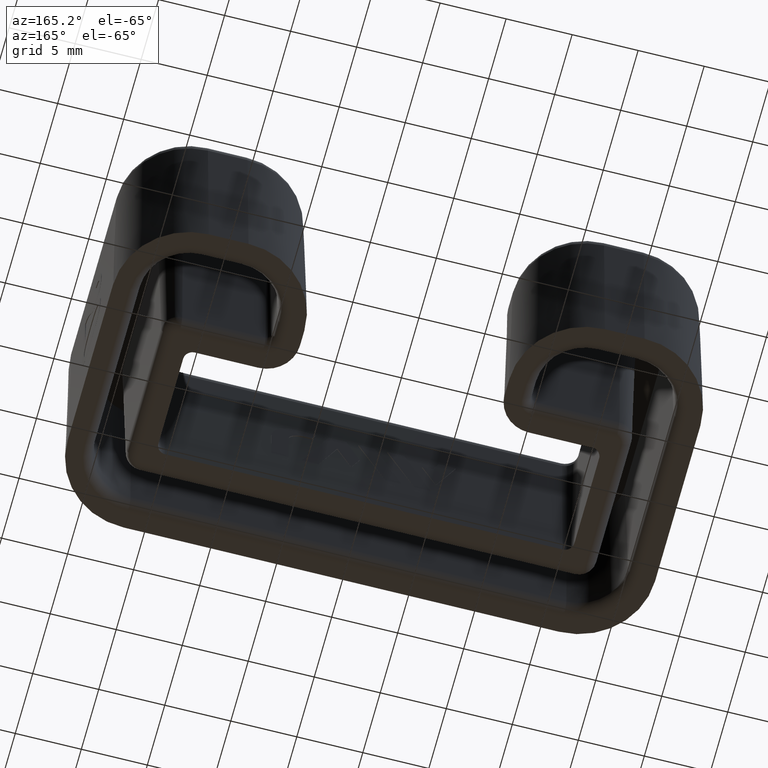
[diagram: clean part render]
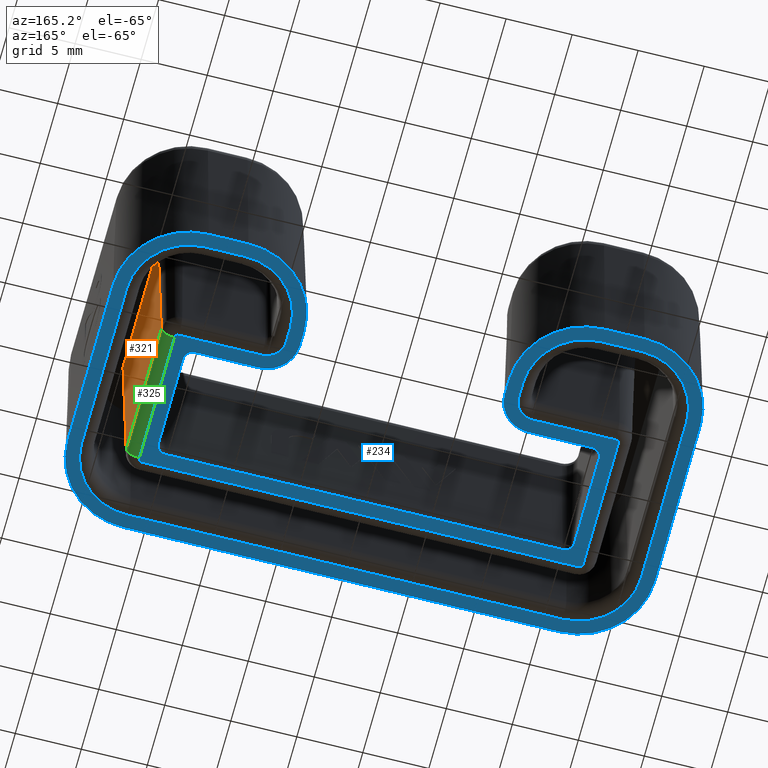
[diagram: same view with three faces highlighted in distinct colors, each labeled with its STEP entity id]
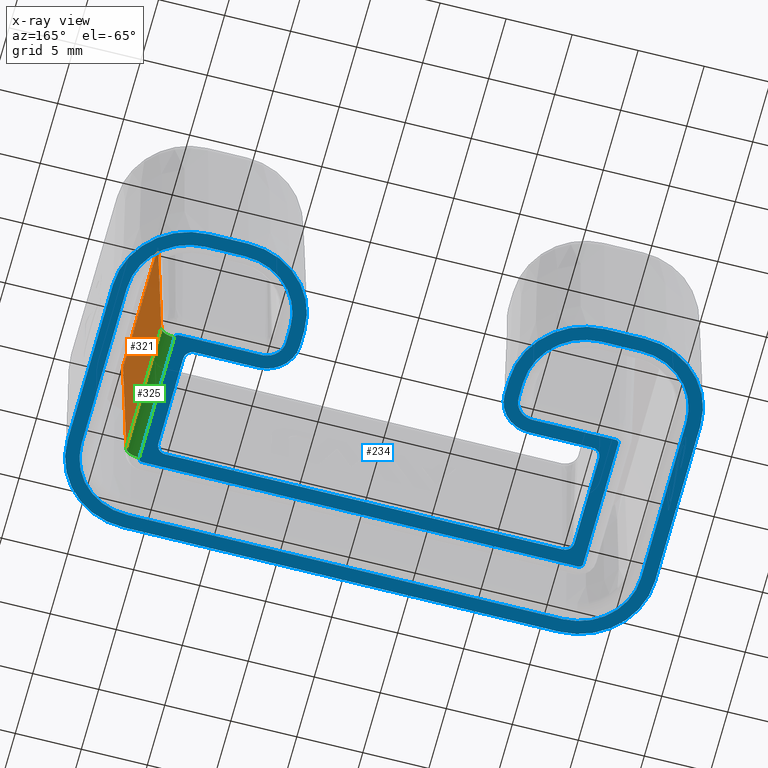
[diagram: x-ray of the same camera — body ghosted, the three highlighted faces saturated]
A machine part, auxiliary view with three faces highlighted in distinct colors.
The next image is the same camera in x-ray (body ghosted, the three faces saturated) — at least one of them is partly hidden behind the body in this view.
Their STEP definitions:

[orange] entity #321 — the highlighted planar face has unit normal (0.9998, 0, -0.0175).
#321=ADVANCED_FACE('',(#684),#685,.T.);
#684=FACE_OUTER_BOUND('',#1089,.T.);
#685=PLANE('',#1090);
#1089=EDGE_LOOP('',(#2621,#2622,#2623,#2624));
#1090=AXIS2_PLACEMENT_3D('',#2625,#2626,#2627);
#2621=ORIENTED_EDGE('',*,*,#3079,.F.);
#2622=ORIENTED_EDGE('',*,*,#3130,.T.);
#2623=ORIENTED_EDGE('',*,*,#3127,.T.);
#2624=ORIENTED_EDGE('',*,*,#3131,.T.);
#2625=CARTESIAN_POINT('',(18.05,1.95,15.0));
#2626=DIRECTION('',(0.999847695156391,0.0,-0.0174524064372835));
#2627=DIRECTION('',(-0.0174524064372835,0.0,-0.999847695156391));
#3079=EDGE_CURVE('',#3756,#3758,#3759,.T.);
#3127=EDGE_CURVE('',#3831,#3832,#3833,.T.);
#3130=EDGE_CURVE('',#3756,#3831,#3836,.F.);
#3131=EDGE_CURVE('',#3832,#3758,#3837,.F.);
#3756=VERTEX_POINT('',#5321);
#3758=VERTEX_POINT('',#5323);
#3759=LINE('',#5324,#5325);
#3831=VERTEX_POINT('',#5432);
#3832=VERTEX_POINT('',#5433);
#3833=LINE('',#5434,#5435);
#3836=LINE('',#5438,#5439);
#3837=LINE('',#5440,#5441);
#5321=CARTESIAN_POINT('',(17.8053244581175,3.5,0.982547593562718));
#5323=CARTESIAN_POINT('',(18.05,3.5,15.0));
#5324=CARTESIAN_POINT('',(18.05,3.5,15.0));
#5325=VECTOR('',#5955,1000.0);
#5432=CARTESIAN_POINT('',(17.8053244581175,13.55,0.982547593562718));
#5433=CARTESIAN_POINT('',(18.05,13.55,15.0));
#5434=CARTESIAN_POINT('',(18.05,13.55,15.0));
#5435=VECTOR('',#6027,1000.0);
#5438=CARTESIAN_POINT('',(17.8053244581175,13.55,0.982547593562716));
#5439=VECTOR('',#6034,1000.0);
#5440=CARTESIAN_POINT('',(18.05,1.95,15.0));
#5441=VECTOR('',#6035,1000.0);
#5955=DIRECTION('',(0.0174524064372835,0.0,0.999847695156391));
#6027=DIRECTION('',(0.0174524064372835,0.0,0.999847695156391));
#6034=DIRECTION('',(0.0,-1.0,0.0));
#6035=DIRECTION('',(0.0,1.0,0.0));

[blue] entity #234 — the highlighted planar face has unit normal (0, 0, -1).
#234=ADVANCED_FACE('',(#509,#510),#511,.T.);
#509=FACE_BOUND('',#914,.T.);
#510=FACE_OUTER_BOUND('',#915,.T.);
#511=PLANE('',#916);
#914=EDGE_LOOP('',(#1948,#1949,#1950,#1951,#1952,#1953,#1954,#1955,#1956,#1957,#1958,#1959,#1960,#1961,#1962,#1963,#1964,#1965,#1966,#1967,#1968,#1969,#1970,#1971));
#915=EDGE_LOOP('',(#1972,#1973,#1974,#1975,#1976,#1977,#1978,#1979,#1980,#1981,#1982,#1983,#1984,#1985,#1986,#1987,#1988,#1989,#1990,#1991,#1992,#1993,#1994,#1995));
#916=AXIS2_PLACEMENT_3D('',#1996,#1997,#1998);
#1948=ORIENTED_EDGE('',*,*,#2909,.T.);
#1949=ORIENTED_EDGE('',*,*,#2910,.T.);
#1950=ORIENTED_EDGE('',*,*,#2911,.T.);
#1951=ORIENTED_EDGE('',*,*,#2912,.T.);
#1952=ORIENTED_EDGE('',*,*,#2913,.T.);
#1953=ORIENTED_EDGE('',*,*,#2914,.T.);
#1954=ORIENTED_EDGE('',*,*,#2915,.T.);
#1955=ORIENTED_EDGE('',*,*,#2916,.T.);
#1956=ORIENTED_EDGE('',*,*,#2917,.T.);
#1957=ORIENTED_EDGE('',*,*,#2899,.T.);
#1958=ORIENTED_EDGE('',*,*,#2918,.T.);
#1959=ORIENTED_EDGE('',*,*,#2919,.T.);
#1960=ORIENTED_EDGE('',*,*,#2920,.T.);
#1961=ORIENTED_EDGE('',*,*,#2921,.T.);
#1962=ORIENTED_EDGE('',*,*,#2922,.T.);
#1963=ORIENTED_EDGE('',*,*,#2923,.T.);
#1964=ORIENTED_EDGE('',*,*,#2924,.T.);
#1965=ORIENTED_EDGE('',*,*,#2908,.T.);
#1966=ORIENTED_EDGE('',*,*,#2905,.T.);
#1967=ORIENTED_EDGE('',*,*,#2925,.T.);
#1968=ORIENTED_EDGE('',*,*,#2926,.T.);
#1969=ORIENTED_EDGE('',*,*,#2927,.T.);
#1970=ORIENTED_EDGE('',*,*,#2928,.T.);
#1971=ORIENTED_EDGE('',*,*,#2929,.T.);
#1972=ORIENTED_EDGE('',*,*,#2930,.F.);
#1973=ORIENTED_EDGE('',*,*,#2931,.F.);
#1974=ORIENTED_EDGE('',*,*,#2932,.F.);
#1975=ORIENTED_EDGE('',*,*,#2933,.F.);
#1976=ORIENTED_EDGE('',*,*,#2934,.F.);
#1977=ORIENTED_EDGE('',*,*,#2935,.F.);
#1978=ORIENTED_EDGE('',*,*,#2936,.F.);
#1979=ORIENTED_EDGE('',*,*,#2937,.F.);
#1980=ORIENTED_EDGE('',*,*,#2938,.F.);
#1981=ORIENTED_EDGE('',*,*,#2939,.F.);
#1982=ORIENTED_EDGE('',*,*,#2940,.F.);
#1983=ORIENTED_EDGE('',*,*,#2941,.F.);
#1984=ORIENTED_EDGE('',*,*,#2942,.F.);
#1985=ORIENTED_EDGE('',*,*,#2943,.F.);
#1986=ORIENTED_EDGE('',*,*,#2944,.F.);
#1987=ORIENTED_EDGE('',*,*,#2945,.F.);
#1988=ORIENTED_EDGE('',*,*,#2946,.F.);
#1989=ORIENTED_EDGE('',*,*,#2947,.F.);
#1990=ORIENTED_EDGE('',*,*,#2948,.F.);
#1991=ORIENTED_EDGE('',*,*,#2949,.F.);
#1992=ORIENTED_EDGE('',*,*,#2950,.F.);
#1993=ORIENTED_EDGE('',*,*,#2951,.F.);
#1994=ORIENTED_EDGE('',*,*,#2952,.F.);
#1995=ORIENTED_EDGE('',*,*,#2953,.F.);
#1996=CARTESIAN_POINT('',(15.05,4.95,0.0));
#1997=DIRECTION('',(0.0,0.0,-1.0));
#1998=DIRECTION('',(0.0,-1.0,0.0));
#2899=EDGE_CURVE('',#3463,#3461,#3464,.F.);
#2905=EDGE_CURVE('',#3468,#3473,#3475,.F.);
#2908=EDGE_CURVE('',#3476,#3468,#3480,.T.);
#2909=EDGE_CURVE('',#3481,#3482,#3483,.F.);
#2910=EDGE_CURVE('',#3482,#3484,#3485,.F.);
#2911=EDGE_CURVE('',#3484,#3486,#3487,.F.);
#2912=EDGE_CURVE('',#3486,#3488,#3489,.F.);
#2913=EDGE_CURVE('',#3488,#3490,#3491,.F.);
#2914=EDGE_CURVE('',#3490,#3492,#3493,.F.);
#2915=EDGE_CURVE('',#3492,#3494,#3495,.F.);
#2916=EDGE_CURVE('',#3494,#3496,#3497,.F.);
#2917=EDGE_CURVE('',#3496,#3463,#3498,.F.);
#2918=EDGE_CURVE('',#3461,#3499,#3500,.F.);
#2919=EDGE_CURVE('',#3499,#3501,#3502,.T.);
#2920=EDGE_CURVE('',#3501,#3503,#3504,.F.);
#2921=EDGE_CURVE('',#3503,#3505,#3506,.T.);
#2922=EDGE_CURVE('',#3505,#3507,#3508,.F.);
#2923=EDGE_CURVE('',#3507,#3509,#3510,.T.);
#2924=EDGE_CURVE('',#3509,#3476,#3511,.F.);
#2925=EDGE_CURVE('',#3473,#3512,#3513,.F.);
#2926=EDGE_CURVE('',#3512,#3514,#3515,.F.);
#2927=EDGE_CURVE('',#3514,#3516,#3517,.F.);
#2928=EDGE_CURVE('',#3516,#3518,#3519,.F.);
#2929=EDGE_CURVE('',#3518,#3481,#3520,.F.);
#2930=EDGE_CURVE('',#3521,#3522,#3523,.T.);
#2931=EDGE_CURVE('',#3524,#3521,#3525,.F.);
#2932=EDGE_CURVE('',#3526,#3524,#3527,.T.);
#2933=EDGE_CURVE('',#3528,#3526,#3529,.F.);
#2934=EDGE_CURVE('',#3530,#3528,#3531,.F.);
#2935=EDGE_CURVE('',#3532,#3530,#3533,.F.);
#2936=EDGE_CURVE('',#3534,#3532,#3535,.F.);
#2937=EDGE_CURVE('',#3536,#3534,#3537,.F.);
#2938=EDGE_CURVE('',#3538,#3536,#3539,.F.);
#2939=EDGE_CURVE('',#3540,#3538,#3541,.F.);
#2940=EDGE_CURVE('',#3542,#3540,#3543,.F.);
#2941=EDGE_CURVE('',#3544,#3542,#3545,.F.);
#2942=EDGE_CURVE('',#3546,#3544,#3547,.F.);
#2943=EDGE_CURVE('',#3548,#3546,#3549,.F.);
#2944=EDGE_CURVE('',#3550,#3548,#3551,.F.);
#2945=EDGE_CURVE('',#3552,#3550,#3553,.F.);
#2946=EDGE_CURVE('',#3554,#3552,#3555,.F.);
#2947=EDGE_CURVE('',#3556,#3554,#3557,.F.);
#2948=EDGE_CURVE('',#3558,#3556,#3559,.F.);
#2949=EDGE_CURVE('',#3560,#3558,#3561,.F.);
#2950=EDGE_CURVE('',#3562,#3560,#3563,.T.);
#2951=EDGE_CURVE('',#3564,#3562,#3565,.F.);
#2952=EDGE_CURVE('',#3566,#3564,#3567,.T.);
#2953=EDGE_CURVE('',#3522,#3566,#3568,.F.);
#3461=VERTEX_POINT('',#4945);
#3463=VERTEX_POINT('',#4947);
#3464=CIRCLE('',#4948,1.44452323703895);
#3468=VERTEX_POINT('',#4952);
#3473=VERTEX_POINT('',#4958);
#3475=LINE('',#4960,#4961);
#3476=VERTEX_POINT('',#4962);
#3480=CIRCLE('',#4966,0.255476762961047);
#3481=VERTEX_POINT('',#4967);
#3482=VERTEX_POINT('',#4968);
#3483=LINE('',#4969,#4970);
#3484=VERTEX_POINT('',#4971);
#3485=CIRCLE('',#4972,4.69452323703894);
#3486=VERTEX_POINT('',#4973);
#3487=LINE('',#4974,#4975);
#3488=VERTEX_POINT('',#4976);
#3489=CIRCLE('',#4977,4.69452323703896);
#3490=VERTEX_POINT('',#4978);
#3491=LINE('',#4979,#4980);
#3492=VERTEX_POINT('',#4981);
#3493=CIRCLE('',#4982,4.69452323703918);
#3494=VERTEX_POINT('',#4983);
#3495=LINE('',#4984,#4985);
#3496=VERTEX_POINT('',#4986);
#3497=CIRCLE('',#4987,4.6945232370389);
#3498=LINE('',#4988,#4989);
#3499=VERTEX_POINT('',#4990);
#3500=LINE('',#4991,#4992);
#3501=VERTEX_POINT('',#4993);
#3502=CIRCLE('',#4994,0.255476762961045);
#3503=VERTEX_POINT('',#4995);
#3504=LINE('',#4996,#4997);
#3505=VERTEX_POINT('',#4998);
#3506=CIRCLE('',#4999,0.305476762961264);
#3507=VERTEX_POINT('',#5000);
#3508=LINE('',#5001,#5002);
#3509=VERTEX_POINT('',#5003);
#3510=CIRCLE('',#5004,0.305476762960986);
#3511=LINE('',#5005,#5006);
#3512=VERTEX_POINT('',#5007);
#3513=CIRCLE('',#5008,1.44452323703895);
#3514=VERTEX_POINT('',#5009);
#3515=LINE('',#5010,#5011);
#3516=VERTEX_POINT('',#5012);
#3517=CIRCLE('',#5013,4.69452323703896);
#3518=VERTEX_POINT('',#5014);
#3519=LINE('',#5015,#5016);
#3520=CIRCLE('',#5017,4.69452323703896);
#3521=VERTEX_POINT('',#5018);
#3522=VERTEX_POINT('',#5019);
#3523=CIRCLE('',#5020,0.7032638962203);
#3524=VERTEX_POINT('',#5021);
#3525=LINE('',#5022,#5023);
#3526=VERTEX_POINT('',#5024);
#3527=CIRCLE('',#5025,0.7032638962203);
#3528=VERTEX_POINT('',#5026);
#3529=LINE('',#5027,#5028);
#3530=VERTEX_POINT('',#5029);
#3531=CIRCLE('',#5030,2.49673610377971);
#3532=VERTEX_POINT('',#5031);
#3533=LINE('',#5032,#5033);
#3534=VERTEX_POINT('',#5034);
#3535=CIRCLE('',#5035,5.74673610377965);
#3536=VERTEX_POINT('',#5036);
#3537=LINE('',#5037,#5038);
#3538=VERTEX_POINT('',#5039);
#3539=CIRCLE('',#5040,5.74673610377957);
#3540=VERTEX_POINT('',#5041);
#3541=LINE('',#5042,#5043);
#3542=VERTEX_POINT('',#5044);
#3543=CIRCLE('',#5045,5.74673610377979);
#3544=VERTEX_POINT('',#5046);
#3545=LINE('',#5047,#5048);
#3546=VERTEX_POINT('',#5049);
#3547=CIRCLE('',#5050,5.74673610377969);
#3548=VERTEX_POINT('',#5051);
#3549=LINE('',#5052,#5053);
#3550=VERTEX_POINT('',#5054);
#3551=CIRCLE('',#5055,5.7467361037797);
#3552=VERTEX_POINT('',#5056);
#3553=LINE('',#5057,#5058);
#3554=VERTEX_POINT('',#5059);
#3555=CIRCLE('',#5060,5.7467361037797);
#3556=VERTEX_POINT('',#5061);
#3557=LINE('',#5062,#5063);
#3558=VERTEX_POINT('',#5064);
#3559=CIRCLE('',#5065,2.49673610377971);
#3560=VERTEX_POINT('',#5066);
#3561=LINE('',#5067,#5068);
#3562=VERTEX_POINT('',#5069);
#3563=CIRCLE('',#5070,0.703263896220302);
#3564=VERTEX_POINT('',#5071);
#3565=LINE('',#5072,#5073);
#3566=VERTEX_POINT('',#5074);
#3567=CIRCLE('',#5075,0.703263896220301);
#3568=LINE('',#5076,#5077);
#4945=CARTESIAN_POINT('',(10.25,13.805476762961,0.0));
#4947=CARTESIAN_POINT('',(8.80547676296111,15.25,0.0));
#4948=AXIS2_PLACEMENT_3D('',#5577,#5578,#5579);
#4952=CARTESIAN_POINT('',(-16.55,13.805476762961,0.0));
#4958=CARTESIAN_POINT('',(-10.25,13.805476762961,0.0));
#4960=CARTESIAN_POINT('',(-10.25,13.805476762961,0.0));
#4961=VECTOR('',#5593,1000.0);
#4962=CARTESIAN_POINT('',(-16.805476762961,13.55,0.0));
#4966=AXIS2_PLACEMENT_3D('',#5600,#5601,#5602);
#4967=CARTESIAN_POINT('',(-21.1945232370389,16.5,0.0));
#4968=CARTESIAN_POINT('',(-21.1945232370389,3.5,0.0));
#4969=CARTESIAN_POINT('',(-21.1945232370389,3.5,0.0));
#4970=VECTOR('',#5603,1000.0);
#4971=CARTESIAN_POINT('',(-16.5,-1.19452323703895,0.0));
#4972=AXIS2_PLACEMENT_3D('',#5604,#5605,#5606);
#4973=CARTESIAN_POINT('',(16.5,-1.19452323703895,0.0));
#4974=CARTESIAN_POINT('',(16.5,-1.19452323703895,0.0));
#4975=VECTOR('',#5607,1000.0);
#4976=CARTESIAN_POINT('',(21.1945232370389,3.5,0.0));
#4977=AXIS2_PLACEMENT_3D('',#5608,#5609,#5610);
#4978=CARTESIAN_POINT('',(21.194523237039,16.5,0.0));
#4979=CARTESIAN_POINT('',(21.194523237039,16.5,0.0));
#4980=VECTOR('',#5611,1000.0);
#4981=CARTESIAN_POINT('',(16.5,21.1945232370392,0.0));
#4982=AXIS2_PLACEMENT_3D('',#5612,#5613,#5614);
#4983=CARTESIAN_POINT('',(13.5,21.194523237039,0.0));
#4984=CARTESIAN_POINT('',(13.5,21.194523237039,0.0));
#4985=VECTOR('',#5615,1000.0);
#4986=CARTESIAN_POINT('',(8.80547676296106,16.5,0.0));
#4987=AXIS2_PLACEMENT_3D('',#5616,#5617,#5618);
#4988=CARTESIAN_POINT('',(8.80547676296111,15.25,0.0));
#4989=VECTOR('',#5619,1000.0);
#4990=CARTESIAN_POINT('',(16.55,13.805476762961,0.0));
#4991=CARTESIAN_POINT('',(16.55,13.805476762961,0.0));
#4992=VECTOR('',#5620,1000.0);
#4993=CARTESIAN_POINT('',(16.8054767629611,13.55,0.0));
#4994=AXIS2_PLACEMENT_3D('',#5621,#5622,#5623);
#4995=CARTESIAN_POINT('',(16.8054767629611,3.5,0.0));
#4996=CARTESIAN_POINT('',(16.8054767629611,3.5,0.0));
#4997=VECTOR('',#5624,1000.0);
#4998=CARTESIAN_POINT('',(16.5,3.19452323703871,0.0));
#4999=AXIS2_PLACEMENT_3D('',#5625,#5626,#5627);
#5000=CARTESIAN_POINT('',(-16.5,3.19452323703895,0.0));
#5001=CARTESIAN_POINT('',(-16.5,3.19452323703895,0.0));
#5002=VECTOR('',#5628,1000.0);
#5003=CARTESIAN_POINT('',(-16.8054767629609,3.5,0.0));
#5004=AXIS2_PLACEMENT_3D('',#5629,#5630,#5631);
#5005=CARTESIAN_POINT('',(-16.805476762961,13.55,0.0));
#5006=VECTOR('',#5632,1000.0);
#5007=CARTESIAN_POINT('',(-8.80547676296097,15.25,0.0));
#5008=AXIS2_PLACEMENT_3D('',#5633,#5634,#5635);
#5009=CARTESIAN_POINT('',(-8.80547676296097,16.5,0.0));
#5010=CARTESIAN_POINT('',(-8.80547676296097,16.5,0.0));
#5011=VECTOR('',#5636,1000.0);
#5012=CARTESIAN_POINT('',(-13.5,21.194523237039,0.0));
#5013=AXIS2_PLACEMENT_3D('',#5637,#5638,#5639);
#5014=CARTESIAN_POINT('',(-16.5,21.194523237039,0.0));
#5015=CARTESIAN_POINT('',(-16.5,21.194523237039,0.0));
#5016=VECTOR('',#5640,1000.0);
#5017=AXIS2_PLACEMENT_3D('',#5641,#5642,#5643);
#5018=CARTESIAN_POINT('',(15.7532638962204,4.95,0.0));
#5019=CARTESIAN_POINT('',(15.05,4.2467361037797,0.0));
#5020=AXIS2_PLACEMENT_3D('',#5644,#5645,#5646);
#5021=CARTESIAN_POINT('',(15.7532638962204,12.05,0.0));
#5022=CARTESIAN_POINT('',(15.7532638962204,3.95,0.0));
#5023=VECTOR('',#5647,1000.0);
#5024=CARTESIAN_POINT('',(15.05,12.7532638962203,0.0));
#5025=AXIS2_PLACEMENT_3D('',#5648,#5649,#5650);
#5026=CARTESIAN_POINT('',(10.25,12.7532638962203,0.0));
#5027=CARTESIAN_POINT('',(15.05,12.7532638962203,0.0));
#5028=VECTOR('',#5651,1000.0);
#5029=CARTESIAN_POINT('',(7.75326389622037,15.25,0.0));
#5030=AXIS2_PLACEMENT_3D('',#5652,#5653,#5654);
#5031=CARTESIAN_POINT('',(7.75326389622031,16.5,0.0));
#5032=CARTESIAN_POINT('',(7.75326389622037,3.95,0.0));
#5033=VECTOR('',#5655,1000.0);
#5034=CARTESIAN_POINT('',(13.5,22.2467361037797,0.0));
#5035=AXIS2_PLACEMENT_3D('',#5656,#5657,#5658);
#5036=CARTESIAN_POINT('',(16.5,22.2467361037796,0.0));
#5037=CARTESIAN_POINT('',(15.05,22.2467361037797,0.0));
#5038=VECTOR('',#5659,1000.0);
#5039=CARTESIAN_POINT('',(22.2467361037798,16.5,0.0));
#5040=AXIS2_PLACEMENT_3D('',#5660,#5661,#5662);
#5041=CARTESIAN_POINT('',(22.2467361037798,3.5,0.0));
#5042=CARTESIAN_POINT('',(22.2467361037798,3.95,0.0));
#5043=VECTOR('',#5663,1000.0);
#5044=CARTESIAN_POINT('',(16.5,-2.2467361037797,0.0));
#5045=AXIS2_PLACEMENT_3D('',#5664,#5665,#5666);
#5046=CARTESIAN_POINT('',(-16.5,-2.24673610377971,0.0));
#5047=CARTESIAN_POINT('',(15.05,-2.2467361037797,0.0));
#5048=VECTOR('',#5667,1000.0);
#5049=CARTESIAN_POINT('',(-22.2467361037797,3.5,0.0));
#5050=AXIS2_PLACEMENT_3D('',#5668,#5669,#5670);
#5051=CARTESIAN_POINT('',(-22.2467361037797,16.5,0.0));
#5052=CARTESIAN_POINT('',(-22.2467361037797,3.95,0.0));
#5053=VECTOR('',#5671,1000.0);
#5054=CARTESIAN_POINT('',(-16.5,22.2467361037797,0.0));
#5055=AXIS2_PLACEMENT_3D('',#5672,#5673,#5674);
#5056=CARTESIAN_POINT('',(-13.5,22.2467361037797,0.0));
#5057=CARTESIAN_POINT('',(15.05,22.2467361037797,0.0));
#5058=VECTOR('',#5675,1000.0);
#5059=CARTESIAN_POINT('',(-7.75326389622023,16.5,0.0));
#5060=AXIS2_PLACEMENT_3D('',#5676,#5677,#5678);
#5061=CARTESIAN_POINT('',(-7.75326389622022,15.25,0.0));
#5062=CARTESIAN_POINT('',(-7.75326389622023,3.95,0.0));
#5063=VECTOR('',#5679,1000.0);
#5064=CARTESIAN_POINT('',(-10.25,12.7532638962203,0.0));
#5065=AXIS2_PLACEMENT_3D('',#5680,#5681,#5682);
#5066=CARTESIAN_POINT('',(-15.05,12.7532638962203,0.0));
#5067=CARTESIAN_POINT('',(15.05,12.7532638962203,0.0));
#5068=VECTOR('',#5683,1000.0);
#5069=CARTESIAN_POINT('',(-15.7532638962203,12.05,0.0));
#5070=AXIS2_PLACEMENT_3D('',#5684,#5685,#5686);
#5071=CARTESIAN_POINT('',(-15.7532638962203,4.95,0.0));
#5072=CARTESIAN_POINT('',(-15.7532638962203,3.95,0.0));
#5073=VECTOR('',#5687,1000.0);
#5074=CARTESIAN_POINT('',(-15.05,4.2467361037797,0.0));
#5075=AXIS2_PLACEMENT_3D('',#5688,#5689,#5690);
#5076=CARTESIAN_POINT('',(15.05,4.2467361037797,0.0));
#5077=VECTOR('',#5691,1000.0);
#5577=CARTESIAN_POINT('',(10.25,15.25,0.0));
#5578=DIRECTION('',(0.0,0.0,-1.0));
#5579=DIRECTION('',(-1.0,0.0,0.0));
#5593=DIRECTION('',(-1.0,0.0,0.0));
#5600=CARTESIAN_POINT('',(-16.55,13.55,0.0));
#5601=DIRECTION('',(0.0,0.0,-1.0));
#5602=DIRECTION('',(-1.0,0.0,0.0));
#5603=DIRECTION('',(0.0,1.0,0.0));
#5604=CARTESIAN_POINT('',(-16.5,3.5,0.0));
#5605=DIRECTION('',(0.0,0.0,-1.0));
#5606=DIRECTION('',(-1.0,0.0,0.0));
#5607=DIRECTION('',(-1.0,0.0,0.0));
#5608=CARTESIAN_POINT('',(16.5,3.5,0.0));
#5609=DIRECTION('',(0.0,0.0,-1.0));
#5610=DIRECTION('',(-1.0,0.0,0.0));
#5611=DIRECTION('',(0.0,-1.0,0.0));
#5612=CARTESIAN_POINT('',(16.5,16.5,0.0));
#5613=DIRECTION('',(0.0,0.0,-1.0));
#5614=DIRECTION('',(-1.0,0.0,0.0));
#5615=DIRECTION('',(1.0,0.0,0.0));
#5616=CARTESIAN_POINT('',(13.5,16.5,0.0));
#5617=DIRECTION('',(0.0,0.0,-1.0));
#5618=DIRECTION('',(-1.0,0.0,0.0));
#5619=DIRECTION('',(0.0,1.0,0.0));
#5620=DIRECTION('',(-1.0,0.0,0.0));
#5621=CARTESIAN_POINT('',(16.55,13.55,0.0));
#5622=DIRECTION('',(0.0,0.0,-1.0));
#5623=DIRECTION('',(-1.0,0.0,0.0));
#5624=DIRECTION('',(0.0,1.0,0.0));
#5625=CARTESIAN_POINT('',(16.5,3.5,0.0));
#5626=DIRECTION('',(0.0,0.0,-1.0));
#5627=DIRECTION('',(-1.0,0.0,0.0));
#5628=DIRECTION('',(1.0,0.0,0.0));
#5629=CARTESIAN_POINT('',(-16.5,3.5,0.0));
#5630=DIRECTION('',(0.0,0.0,-1.0));
#5631=DIRECTION('',(-1.0,0.0,0.0));
#5632=DIRECTION('',(0.0,-1.0,0.0));
#5633=CARTESIAN_POINT('',(-10.25,15.25,0.0));
#5634=DIRECTION('',(0.0,0.0,-1.0));
#5635=DIRECTION('',(-1.0,0.0,0.0));
#5636=DIRECTION('',(0.0,-1.0,0.0));
#5637=CARTESIAN_POINT('',(-13.5,16.5,0.0));
#5638=DIRECTION('',(0.0,0.0,-1.0));
#5639=DIRECTION('',(-1.0,0.0,0.0));
#5640=DIRECTION('',(1.0,0.0,0.0));
#5641=CARTESIAN_POINT('',(-16.5,16.5,0.0));
#5642=DIRECTION('',(0.0,0.0,-1.0));
#5643=DIRECTION('',(-1.0,0.0,0.0));
#5644=CARTESIAN_POINT('',(15.05,4.95,0.0));
#5645=DIRECTION('',(0.0,0.0,-1.0));
#5646=DIRECTION('',(-1.0,0.0,0.0));
#5647=DIRECTION('',(0.0,1.0,0.0));
#5648=CARTESIAN_POINT('',(15.05,12.05,0.0));
#5649=DIRECTION('',(0.0,0.0,-1.0));
#5650=DIRECTION('',(-1.0,0.0,0.0));
#5651=DIRECTION('',(-1.0,0.0,0.0));
#5652=CARTESIAN_POINT('',(10.25,15.25,0.0));
#5653=DIRECTION('',(0.0,0.0,-1.0));
#5654=DIRECTION('',(-1.0,0.0,0.0));
#5655=DIRECTION('',(0.0,1.0,0.0));
#5656=CARTESIAN_POINT('',(13.5,16.5,0.0));
#5657=DIRECTION('',(0.0,0.0,-1.0));
#5658=DIRECTION('',(-1.0,0.0,0.0));
#5659=DIRECTION('',(1.0,0.0,0.0));
#5660=CARTESIAN_POINT('',(16.5,16.5,0.0));
#5661=DIRECTION('',(0.0,0.0,-1.0));
#5662=DIRECTION('',(-1.0,0.0,0.0));
#5663=DIRECTION('',(0.0,-1.0,0.0));
#5664=CARTESIAN_POINT('',(16.5,3.5,0.0));
#5665=DIRECTION('',(0.0,0.0,-1.0));
#5666=DIRECTION('',(-1.0,0.0,0.0));
#5667=DIRECTION('',(-1.0,0.0,0.0));
#5668=CARTESIAN_POINT('',(-16.5,3.5,0.0));
#5669=DIRECTION('',(0.0,0.0,-1.0));
#5670=DIRECTION('',(-1.0,0.0,0.0));
#5671=DIRECTION('',(0.0,1.0,0.0));
#5672=CARTESIAN_POINT('',(-16.5,16.5,0.0));
#5673=DIRECTION('',(0.0,0.0,-1.0));
#5674=DIRECTION('',(-1.0,0.0,0.0));
#5675=DIRECTION('',(1.0,0.0,0.0));
#5676=CARTESIAN_POINT('',(-13.5,16.5,0.0));
#5677=DIRECTION('',(0.0,0.0,-1.0));
#5678=DIRECTION('',(-1.0,0.0,0.0));
#5679=DIRECTION('',(0.0,-1.0,0.0));
#5680=CARTESIAN_POINT('',(-10.25,15.25,0.0));
#5681=DIRECTION('',(0.0,0.0,-1.0));
#5682=DIRECTION('',(-1.0,0.0,0.0));
#5683=DIRECTION('',(-1.0,0.0,0.0));
#5684=CARTESIAN_POINT('',(-15.05,12.05,0.0));
#5685=DIRECTION('',(0.0,0.0,-1.0));
#5686=DIRECTION('',(-1.0,0.0,0.0));
#5687=DIRECTION('',(0.0,-1.0,0.0));
#5688=CARTESIAN_POINT('',(-15.05,4.95,0.0));
#5689=DIRECTION('',(0.0,0.0,-1.0));
#5690=DIRECTION('',(-1.0,0.0,0.0));
#5691=DIRECTION('',(1.0,0.0,0.0));

[green] entity #325 — the highlighted cylindrical surface (edge-blend (fillet) strip) has radius 1 mm, axis along (-0, 1, 0).
#325=ADVANCED_FACE('',(#692),#693,.T.);
#692=FACE_OUTER_BOUND('',#1097,.T.);
#693=CYLINDRICAL_SURFACE('',#1098,1.0);
#1097=EDGE_LOOP('',(#2669,#2670,#2671,#2672));
#1098=AXIS2_PLACEMENT_3D('',#2673,#2674,#2675);
#2669=ORIENTED_EDGE('',*,*,#3132,.T.);
#2670=ORIENTED_EDGE('',*,*,#2920,.F.);
#2671=ORIENTED_EDGE('',*,*,#3135,.F.);
#2672=ORIENTED_EDGE('',*,*,#3130,.F.);
#2673=CARTESIAN_POINT('',(16.8054767629611,4.95,1.0));
#2674=DIRECTION('',(-0.0,1.0,0.0));
#2675=DIRECTION('',(0.0,0.0,-1.0));
#2920=EDGE_CURVE('',#3501,#3503,#3504,.F.);
#3130=EDGE_CURVE('',#3756,#3831,#3836,.F.);
#3132=EDGE_CURVE('',#3756,#3503,#3838,.T.);
#3135=EDGE_CURVE('',#3831,#3501,#3841,.T.);
#3501=VERTEX_POINT('',#4993);
#3503=VERTEX_POINT('',#4995);
#3504=LINE('',#4996,#4997);
#3756=VERTEX_POINT('',#5321);
#3831=VERTEX_POINT('',#5432);
#3836=LINE('',#5438,#5439);
#3838=CIRCLE('',#5442,1.0);
#3841=CIRCLE('',#5445,1.0);
#4993=CARTESIAN_POINT('',(16.8054767629611,13.55,0.0));
#4995=CARTESIAN_POINT('',(16.8054767629611,3.5,0.0));
#4996=CARTESIAN_POINT('',(16.8054767629611,3.5,0.0));
#4997=VECTOR('',#5624,1000.0);
#5321=CARTESIAN_POINT('',(17.8053244581175,3.5,0.982547593562718));
#5432=CARTESIAN_POINT('',(17.8053244581175,13.55,0.982547593562718));
#5438=CARTESIAN_POINT('',(17.8053244581175,13.55,0.982547593562716));
#5439=VECTOR('',#6034,1000.0);
#5442=AXIS2_PLACEMENT_3D('',#6036,#6037,#6038);
#5445=AXIS2_PLACEMENT_3D('',#6045,#6046,#6047);
#5624=DIRECTION('',(0.0,1.0,0.0));
#6034=DIRECTION('',(0.0,-1.0,0.0));
#6036=CARTESIAN_POINT('',(16.8054767629612,3.5,1.0));
#6037=DIRECTION('',(0.0,1.0,0.0));
#6038=DIRECTION('',(0.0,0.0,1.0));
#6045=CARTESIAN_POINT('',(16.8054767629611,13.55,1.0));
#6046=DIRECTION('',(0.0,1.0,0.0));
#6047=DIRECTION('',(0.0,0.0,1.0));